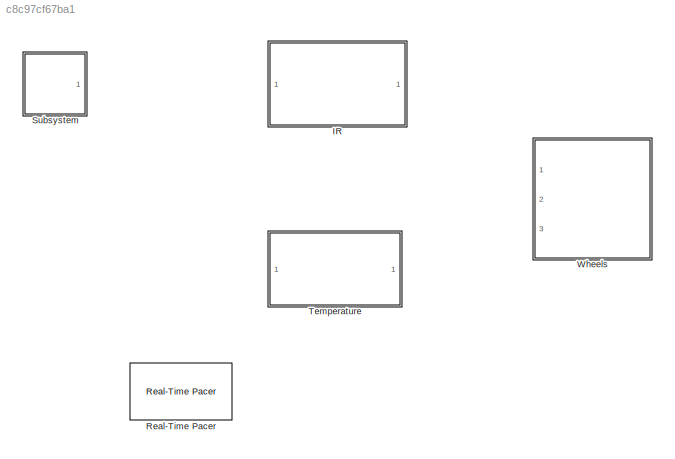
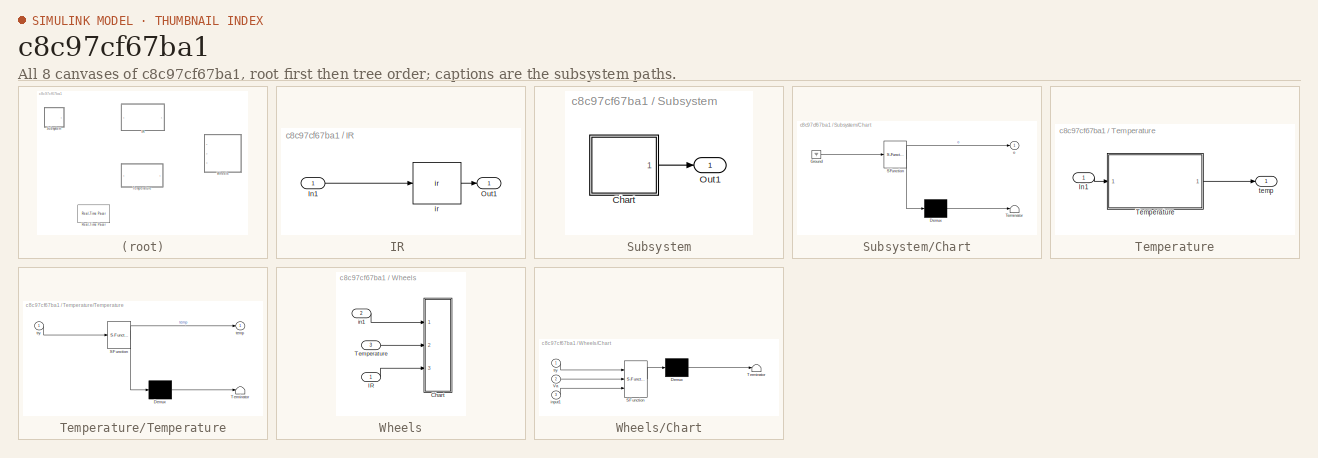
[diagram: thumbnail index - all 8 canvases of the model, root first then tree order]
MODEL slx_c8c97cf67ba1
KIND library
CONFIG AbsTol = auto
CONFIG EnableMultiTasking = off
CONFIG FixedStep = auto
CONFIG MaxStep = auto
CONFIG MinStep = auto
CONFIG RelTol = 1e-3
CONFIG SampleTimeConstraint = Unconstrained
CONFIG Solver = VariableStepAuto
CONFIG SolverName = VariableStepAuto
CONFIG StartTime = 0.0
CONFIG StopTime = 10.0
BLOCK [SubSystem] IR 
  Ports = [1, 1]
  RequestExecContextInheritance = off
  Variant = off
BLOCK [Inport] IR /In1
  IconDisplay = Port number
BLOCK [Outport] IR /Out1
  IconDisplay = Port number
BLOCK [Reference] IR /ir  REF=untitled/Subsystem1/ir
  Ports = [1, 1]
  SourceBlock = untitled/Subsystem1/ir
  SourceType = SubSystem
BLOCK [Reference] Real-Time Pacer  REF=realtime_pacer_lib/Real-Time Pacer
  Ports = []
  SourceBlock = realtime_pacer_lib/Real-Time Pacer
  SourceType = RealTime_Pacer
BLOCK [SubSystem] Subsystem
  Ports = [0, 1]
  RequestExecContextInheritance = off
  Variant = off
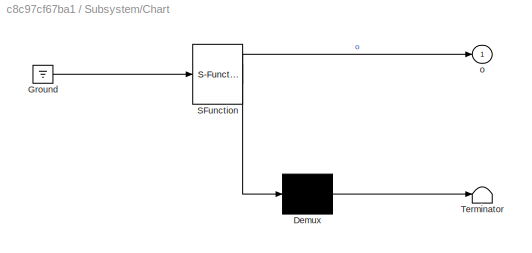
BLOCK [SubSystem] Subsystem/Chart
  AncestorBlock = untitled/Init/Chart
  ErrorFcn = Stateflow.Translate.translate
  PermitHierarchicalResolution = ExplicitOnly
  Ports = [0, 1]
  RequestExecContextInheritance = off
  SFBlockType = Chart
  TreatAsAtomicUnit = on
  Variant = off
BLOCK [Demux] Subsystem/Chart/ Demux 
  Outputs = 1
  Ports = [1, 1]
BLOCK [Ground] Subsystem/Chart/ Ground 
BLOCK [S-Function] Subsystem/Chart/ SFunction 
  EnableBusSupport = off
  FunctionName = sf_sfun
  PortCounts = [1 2]
  Ports = [1, 2]
  SFcnIsStateOwnerBlock = off
  SFunctionDeploymentMode = off
  Tag = Stateflow S-Function libraryProject2 3
BLOCK [Terminator] Subsystem/Chart/ Terminator 
BLOCK [Outport] Subsystem/Chart/o
  IconDisplay = Port number
BLOCK [Outport] Subsystem/Out1
  IconDisplay = Port number
BLOCK [SubSystem] Temperature
  Ports = [1, 1]
  RequestExecContextInheritance = off
  Variant = off
BLOCK [Inport] Temperature/In1
  IconDisplay = Port number
BLOCK [SubSystem] Temperature/Temperature
  ErrorFcn = Stateflow.Translate.translate
  PermitHierarchicalResolution = ExplicitOnly
  Ports = [1, 1]
  RequestExecContextInheritance = off
  SFBlockType = Chart
  TreatAsAtomicUnit = on
  Variant = off
BLOCK [Demux] Temperature/Temperature/ Demux 
  Outputs = 1
  Ports = [1, 1]
BLOCK [S-Function] Temperature/Temperature/ SFunction 
  EnableBusSupport = off
  FunctionName = sf_sfun
  PortCounts = [1 2]
  Ports = [1, 2]
  SFcnIsStateOwnerBlock = off
  SFunctionDeploymentMode = off
  Tag = Stateflow S-Function libraryProject2 1
BLOCK [Terminator] Temperature/Temperature/ Terminator 
BLOCK [Outport] Temperature/Temperature/temp
  IconDisplay = Port number
BLOCK [Inport] Temperature/Temperature/try
  IconDisplay = Port number
BLOCK [Outport] Temperature/temp
  IconDisplay = Port number
BLOCK [SubSystem] Wheels
  Ports = [3]
  RequestExecContextInheritance = off
  Variant = off
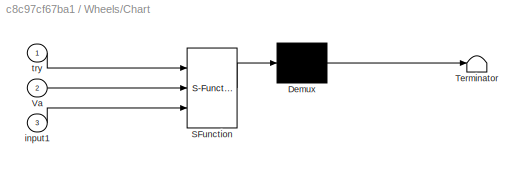
BLOCK [SubSystem] Wheels/Chart
  ErrorFcn = Stateflow.Translate.translate
  PermitHierarchicalResolution = ExplicitOnly
  Ports = [3]
  RequestExecContextInheritance = off
  SFBlockType = Chart
  TreatAsAtomicUnit = on
  Variant = off
BLOCK [Demux] Wheels/Chart/ Demux 
  Outputs = 1
  Ports = [1, 1]
BLOCK [S-Function] Wheels/Chart/ SFunction 
  EnableBusSupport = off
  FunctionName = sf_sfun
  PortCounts = [3 1]
  Ports = [3, 1]
  SFcnIsStateOwnerBlock = off
  SFunctionDeploymentMode = off
  Tag = Stateflow S-Function libraryProject2 11
BLOCK [Terminator] Wheels/Chart/ Terminator 
BLOCK [Inport] Wheels/Chart/Va
  IconDisplay = Port number
  Port = 2
BLOCK [Inport] Wheels/Chart/input1
  IconDisplay = Port number
  Port = 3
BLOCK [Inport] Wheels/Chart/try
  IconDisplay = Port number
BLOCK [Inport] Wheels/IR
  IconDisplay = Port number
BLOCK [Inport] Wheels/Temperature
  IconDisplay = Port number
  Port = 3
BLOCK [Inport] Wheels/in1
  IconDisplay = Port number
  Port = 2
LINE IR /In1:1 -> IR /ir:1
LINE IR /ir:1 -> IR /Out1:1
LINE Subsystem/Chart:1 -> Subsystem/Out1:1
LINE Temperature/In1:1 -> Temperature/Temperature:1
LINE Temperature/Temperature:1 -> Temperature/temp:1
LINE Wheels/IR:1 -> Wheels/Chart:3
LINE Wheels/Temperature:1 -> Wheels/Chart:2
LINE Wheels/in1:1 -> Wheels/Chart:1
CHART Temperature/Temperature states=2 transitions=1
  STATE_LABEL 'y= T'
  STATE_LABEL "SCRIPT:\nfunction y= T\npersistent so\ny=1;\ncoder.extrinsic('evalin');\ncoder.extrinsic('get');\n\nso = evalin('base','objWs');\n\ntemp=0;  \ncoder.extrinsic('TemperatureRoomba');\ntemp=TemperatureRoomba(so);\n\ny=temp;\n"
  STATE_LABEL 'temp\nen,du:\ntemp=T;'
CHART Subsystem/Chart states=2 transitions=1
  STATE_LABEL 'fist\nen,du:\ntcpInit;\no=1;\n'
  STATE_LABEL 'tcpInit'
  STATE_LABEL "SCRIPT:\nfunction tcpInit\ncoder.extrinsic('RoombaInitfanny');\ncoder.extrinsic('assignin');\npersistent obj\nif isempty(obj)\n    obj=RoombaInitfanny('10.0.0.1','full');\n    assignin('base','objWs',obj);\nend"
CHART Wheels/Chart states=12 transitions=18
  STATE_LABEL 'on1'
  STATE_LABEL 'off\nen,du:\nWheels(0,0);\n'
  STATE_LABEL 'on'
  STATE_LABEL 'Reverse\nentry:\nWheels(-.1,-0.1);\n'
  STATE_LABEL 'Straiforward\nentry,du:\nWheels(0.05,0.05);\n'
  STATE_LABEL 'Rightturn3\nentry,du:\n Wheels(-0.2,0.2);\n'
  STATE_LABEL 'leftturn3\nentry,du:\n Wheels(0.2,-0.2);\n'
  STATE_LABEL 'Leftturn3\nentry,du:\nWheels(0.3,-0.2);\n'
  STATE_LABEL 'Rightturn2\nentry,du:\nWheels(-0.2,0.3);\n'
  STATE_LABEL 'Leftturn2\nentry,du:\n Wheels(.2,              -0.1);'
  STATE_LABEL 'Rightturn1\nentry,du:\nWheels(-0.1,.2);\n'
  STATE_LABEL 'after(1,sec)'
  STATE_LABEL '[input1(1)>0]'
  STATE_LABEL '[input1(1)<1]'
  STATE_LABEL '[input1(2)>0]'
  STATE_LABEL '[input1(2)<1]'
  STATE_LABEL '[input1(3)>0]'
  STATE_LABEL '[input1(3)<1]'
  STATE_LABEL '[input1(4)>0]'
  STATE_LABEL '[input1(4)<1]'
  STATE_LABEL '[input1(5)>0]'
  STATE_LABEL '[input1(5)<1]'
  STATE_LABEL '[input1(6)>0]'
  STATE_LABEL '[input1(6)<1]'
  STATE_LABEL '[Va<80]'
  STATE_LABEL '[Va>=80]'
  STATE_LABEL 'off\nen,du:\nWheels(0,0);\n'
  STATE_LABEL 'on'
  STATE_LABEL 'Reverse\nentry:\nWheels(-.1,-0.1);\n'
  STATE_LABEL 'Straiforward\nentry,du:\nWheels(0.05,0.05);\n'
  STATE_LABEL 'Rightturn3\nentry,du:\n Wheels(-0.2,0.2);\n'
  STATE_LABEL 'leftturn3\nentry,du:\n Wheels(0.2,-0.2);\n'
  STATE_LABEL 'Leftturn3\nentry,du:\nWheels(0.3,-0.2);\n'
  STATE_LABEL 'Rightturn2\nentry,du:\nWheels(-0.2,0.3);\n'
  STATE_LABEL 'Leftturn2\nentry,du:\n Wheels(.2,              -0.1);'
  STATE_LABEL 'Rightturn1\nentry,du:\nWheels(-0.1,.2);\n'
  STATE_LABEL 'after(1,sec)'
  STATE_LABEL '[input1(1)>0]'
  STATE_LABEL '[input1(1)<1]'
  STATE_LABEL '[input1(2)>0]'
